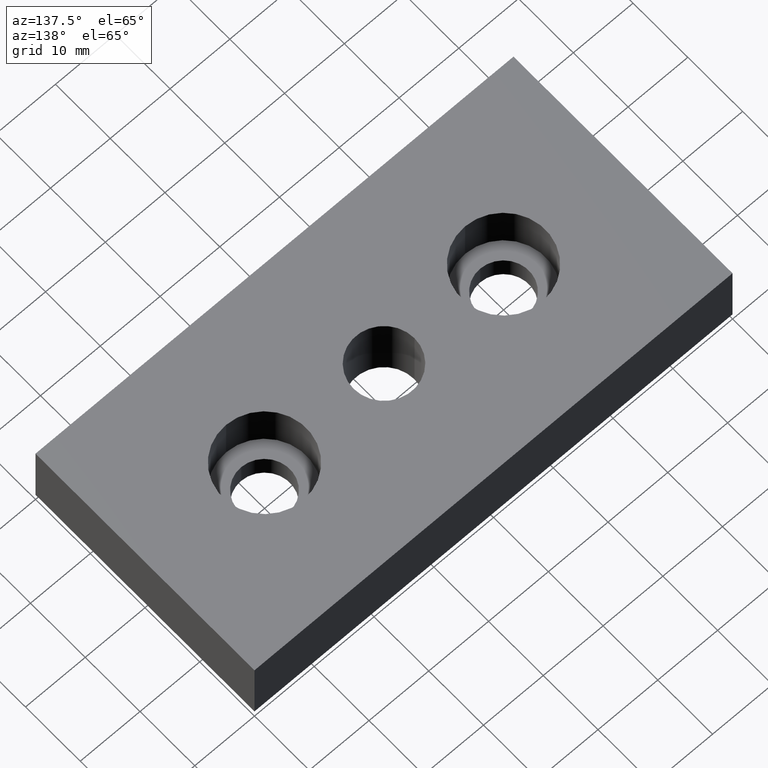
[diagram: clean part render]
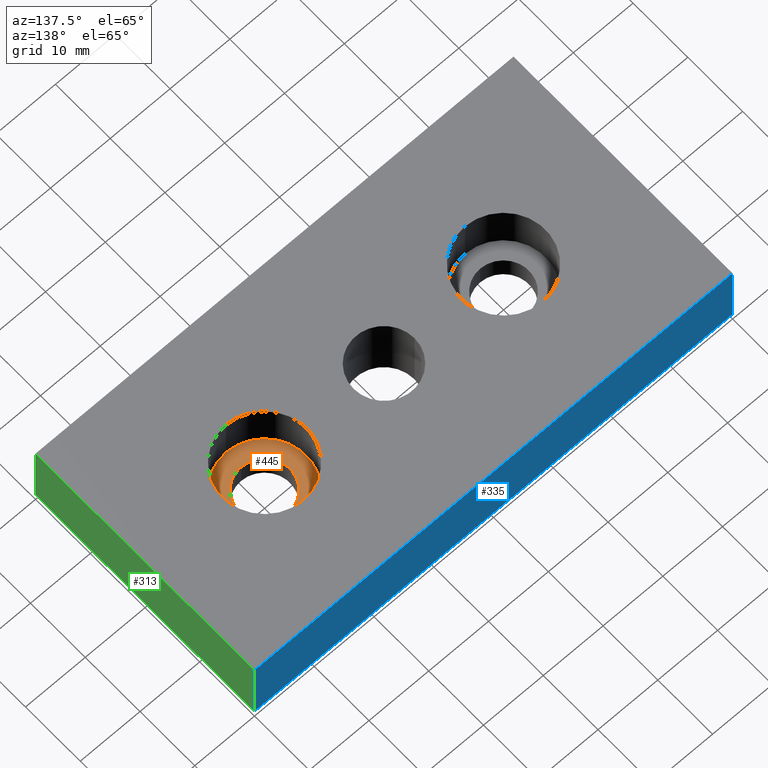
[diagram: same view with three faces highlighted in distinct colors, each labeled with its STEP entity id]
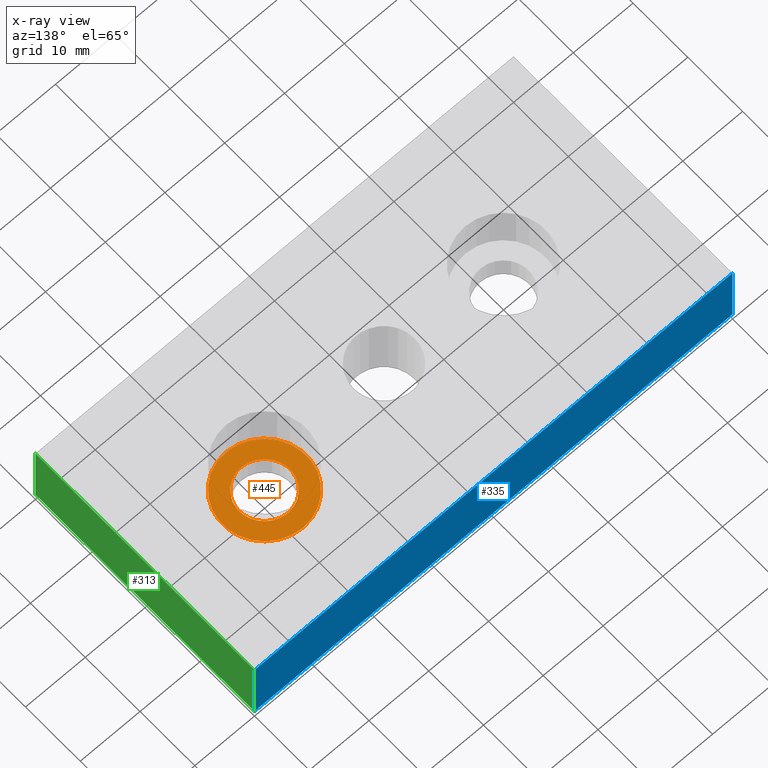
[diagram: x-ray of the same camera — body ghosted, the three highlighted faces saturated]
A machine part, auxiliary view with three faces highlighted in distinct colors.
The next image is the same camera in x-ray (body ghosted, the three faces saturated) — at least one of them is partly hidden behind the body in this view.
Their STEP definitions:

[orange] entity #445 — the highlighted planar face has unit normal (0, 0, -1).
#133=CARTESIAN_POINT('',(-19.999999999999996,4.249999999999991,4.0));
#134=VERTEX_POINT('',#133);
#135=CARTESIAN_POINT('',(-19.999999999999996,-4.250000000000009,4.0));
#136=VERTEX_POINT('',#135);
#137=CARTESIAN_POINT('',(-19.999999999999996,-8.881784E-015,4.0));
#138=DIRECTION('',(0.0,0.0,-1.0));
#139=DIRECTION('',(-1.0,0.0,0.0));
#140=AXIS2_PLACEMENT_3D('',#137,#138,#139);
#141=CIRCLE('',#140,4.250000000000000);
#142=EDGE_CURVE('',#134,#136,#141,.T.);
#186=CARTESIAN_POINT('',(-19.999999999999996,6.999999999999991,4.0));
#187=VERTEX_POINT('',#186);
#194=CARTESIAN_POINT('',(-19.999999999999996,-7.000000000000007,4.0));
#195=VERTEX_POINT('',#194);
#196=CARTESIAN_POINT('',(-19.999999999999996,-8.881784E-015,4.0));
#197=DIRECTION('',(0.0,0.0,1.0));
#198=DIRECTION('',(0.0,-1.0,0.0));
#199=AXIS2_PLACEMENT_3D('',#196,#197,#198);
#200=CIRCLE('',#199,6.999999999999997);
#201=EDGE_CURVE('',#195,#187,#200,.T.);
#420=CARTESIAN_POINT('',(-12.300000000000001,-7.700000000000008,4.0));
#421=DIRECTION('',(0.0,0.0,-1.0));
#422=DIRECTION('',(-1.0,0.0,0.0));
#423=AXIS2_PLACEMENT_3D('',#420,#421,#422);
#424=PLANE('',#423);
#425=ORIENTED_EDGE('',*,*,#201,.T.);
#426=CARTESIAN_POINT('',(-19.999999999999996,-8.881784E-015,4.0));
#427=DIRECTION('',(0.0,0.0,1.0));
#428=DIRECTION('',(0.0,-1.0,0.0));
#429=AXIS2_PLACEMENT_3D('',#426,#427,#428);
#430=CIRCLE('',#429,6.999999999999997);
#431=EDGE_CURVE('',#187,#195,#430,.T.);
#432=ORIENTED_EDGE('',*,*,#431,.T.);
#433=EDGE_LOOP('',(#425,#432));
#434=FACE_OUTER_BOUND('',#433,.T.);
#435=CARTESIAN_POINT('',(-19.999999999999996,-8.881784E-015,4.0));
#436=DIRECTION('',(0.0,0.0,-1.0));
#437=DIRECTION('',(-1.0,0.0,0.0));
#438=AXIS2_PLACEMENT_3D('',#435,#436,#437);
#439=CIRCLE('',#438,4.250000000000000);
#440=EDGE_CURVE('',#136,#134,#439,.T.);
#441=ORIENTED_EDGE('',*,*,#440,.T.);
#442=ORIENTED_EDGE('',*,*,#142,.T.);
#443=EDGE_LOOP('',(#441,#442));
#444=FACE_BOUND('',#443,.T.);
#445=ADVANCED_FACE('',(#434,#444),#424,.F.);

[blue] entity #335 — the highlighted planar face has unit normal (0, 1, 0).
#217=CARTESIAN_POINT('',(-80.0,20.000000000000007,12.0));
#218=VERTEX_POINT('',#217);
#227=CARTESIAN_POINT('',(-80.0,20.000000000000007,0.0));
#228=VERTEX_POINT('',#227);
#229=CARTESIAN_POINT('',(-80.0,20.000000000000007,0.0));
#230=DIRECTION('',(0.0,0.0,1.0));
#231=VECTOR('',#230,12.0);
#232=LINE('',#229,#231);
#233=EDGE_CURVE('',#228,#218,#232,.T.);
#288=CARTESIAN_POINT('',(0.0,20.000000000000007,12.0));
#289=VERTEX_POINT('',#288);
#297=CARTESIAN_POINT('',(0.0,20.000000000000007,0.0));
#298=VERTEX_POINT('',#297);
#305=CARTESIAN_POINT('',(0.0,20.000000000000007,0.0));
#306=DIRECTION('',(0.0,0.0,1.0));
#307=VECTOR('',#306,12.0);
#308=LINE('',#305,#307);
#309=EDGE_CURVE('',#298,#289,#308,.T.);
#314=CARTESIAN_POINT('',(-84.0,20.000000000000007,-0.600000000000000));
#315=DIRECTION('',(0.0,1.0,0.0));
#316=DIRECTION('',(0.0,0.0,1.0));
#317=AXIS2_PLACEMENT_3D('',#314,#315,#316);
#318=PLANE('',#317);
#319=CARTESIAN_POINT('',(0.0,20.000000000000007,12.0));
#320=DIRECTION('',(-1.0,0.0,0.0));
#321=VECTOR('',#320,80.0);
#322=LINE('',#319,#321);
#323=EDGE_CURVE('',#289,#218,#322,.T.);
#324=ORIENTED_EDGE('',*,*,#323,.F.);
#325=ORIENTED_EDGE('',*,*,#309,.F.);
#326=CARTESIAN_POINT('',(0.0,20.000000000000007,0.0));
#327=DIRECTION('',(-1.0,0.0,0.0));
#328=VECTOR('',#327,80.0);
#329=LINE('',#326,#328);
#330=EDGE_CURVE('',#298,#228,#329,.T.);
#331=ORIENTED_EDGE('',*,*,#330,.T.);
#332=ORIENTED_EDGE('',*,*,#233,.T.);
#333=EDGE_LOOP('',(#324,#325,#331,#332));
#334=FACE_OUTER_BOUND('',#333,.T.);
#335=ADVANCED_FACE('',(#334),#318,.T.);

[green] entity #313 — the highlighted planar face has unit normal (1, 0, 0).
#257=CARTESIAN_POINT('',(7.105427E-015,-20.000000000000004,12.0));
#258=VERTEX_POINT('',#257);
#266=CARTESIAN_POINT('',(7.105427E-015,-20.000000000000004,0.0));
#267=VERTEX_POINT('',#266);
#274=CARTESIAN_POINT('',(7.105427E-015,-20.000000000000004,0.0));
#275=DIRECTION('',(0.0,0.0,1.0));
#276=VECTOR('',#275,12.0);
#277=LINE('',#274,#276);
#278=EDGE_CURVE('',#267,#258,#277,.T.);
#283=CARTESIAN_POINT('',(0.0,-22.000000000000004,12.600000000000000));
#284=DIRECTION('',(1.0,0.0,0.0));
#285=DIRECTION('',(0.0,0.0,-1.0));
#286=AXIS2_PLACEMENT_3D('',#283,#284,#285);
#287=PLANE('',#286);
#288=CARTESIAN_POINT('',(0.0,20.000000000000007,12.0));
#289=VERTEX_POINT('',#288);
#290=CARTESIAN_POINT('',(0.0,-20.000000000000004,12.0));
#291=DIRECTION('',(0.0,1.0,0.0));
#292=VECTOR('',#291,40.000000000000007);
#293=LINE('',#290,#292);
#294=EDGE_CURVE('',#258,#289,#293,.T.);
#295=ORIENTED_EDGE('',*,*,#294,.F.);
#296=ORIENTED_EDGE('',*,*,#278,.F.);
#297=CARTESIAN_POINT('',(0.0,20.000000000000007,0.0));
#298=VERTEX_POINT('',#297);
#299=CARTESIAN_POINT('',(0.0,-20.000000000000004,0.0));
#300=DIRECTION('',(0.0,1.0,0.0));
#301=VECTOR('',#300,40.000000000000007);
#302=LINE('',#299,#301);
#303=EDGE_CURVE('',#267,#298,#302,.T.);
#304=ORIENTED_EDGE('',*,*,#303,.T.);
#305=CARTESIAN_POINT('',(0.0,20.000000000000007,0.0));
#306=DIRECTION('',(0.0,0.0,1.0));
#307=VECTOR('',#306,12.0);
#308=LINE('',#305,#307);
#309=EDGE_CURVE('',#298,#289,#308,.T.);
#310=ORIENTED_EDGE('',*,*,#309,.T.);
#311=EDGE_LOOP('',(#295,#296,#304,#310));
#312=FACE_OUTER_BOUND('',#311,.T.);
#313=ADVANCED_FACE('',(#312),#287,.T.);